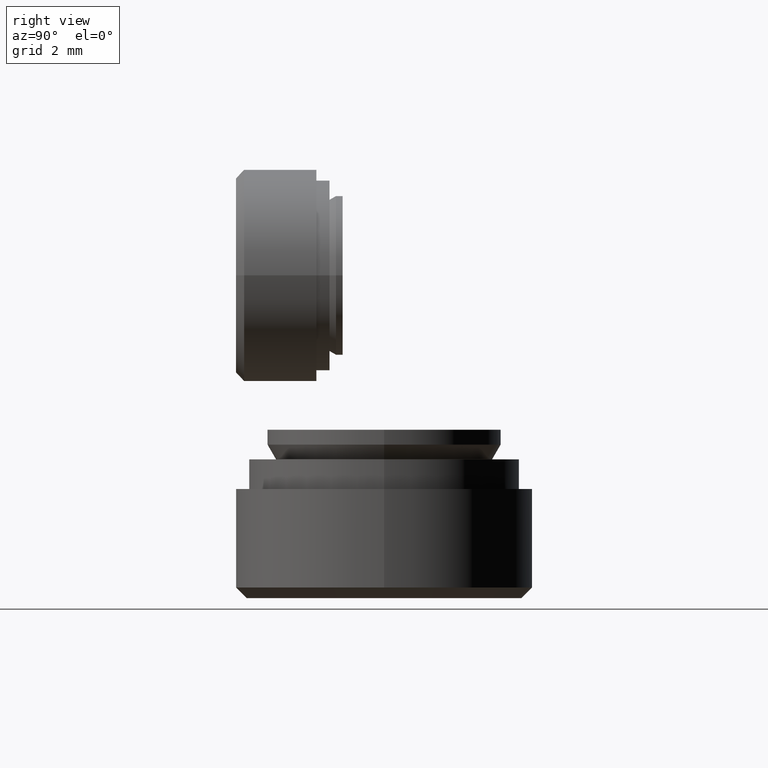
[diagram: clean part render]
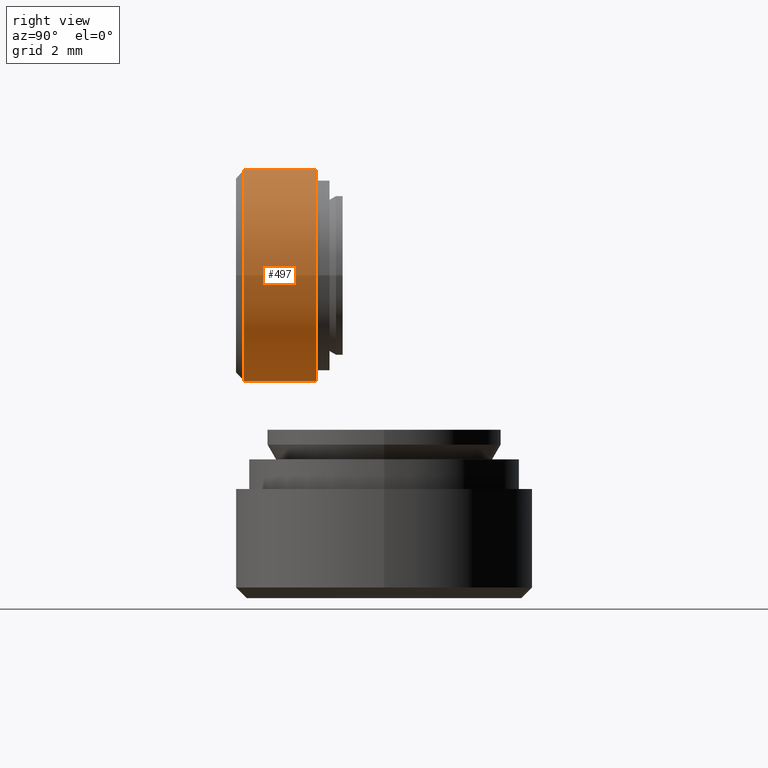
[diagram: same view with one face highlighted and labeled with its STEP entity id]
A machine part, right view. The second image highlights one B-rep face of the part: STEP entity #497.
In plain terms, the highlighted cylindrical surface (bore or boss wall) has radius 3.95 mm, axis along (0, -1, -0).
Its self-contained STEP definition (entity closure, byte-faithful):
#68=CYLINDRICAL_SURFACE('',#580,3.95);
#104=FACE_BOUND('',#222,.T.);
#146=FACE_OUTER_BOUND('',#221,.T.);
#221=EDGE_LOOP('',(#431));
#222=EDGE_LOOP('',(#432));
#271=CIRCLE('',#576,3.95);
#274=CIRCLE('',#581,3.95);
#313=VERTEX_POINT('',#881);
#316=VERTEX_POINT('',#889);
#355=EDGE_CURVE('',#313,#313,#271,.T.);
#358=EDGE_CURVE('',#316,#316,#274,.T.);
#431=ORIENTED_EDGE('',*,*,#358,.T.);
#432=ORIENTED_EDGE('',*,*,#355,.F.);
#497=ADVANCED_FACE('',(#146,#104),#68,.T.);
#576=AXIS2_PLACEMENT_3D('',#882,#734,#735);
#580=AXIS2_PLACEMENT_3D('',#888,#742,#743);
#581=AXIS2_PLACEMENT_3D('',#890,#744,#745);
#734=DIRECTION('center_axis',(0.,0.,-1.));
#735=DIRECTION('ref_axis',(1.,0.,0.));
#742=DIRECTION('center_axis',(0.,0.,-1.));
#743=DIRECTION('ref_axis',(-1.,0.,0.));
#744=DIRECTION('center_axis',(0.,0.,-1.));
#745=DIRECTION('ref_axis',(-1.,0.,0.));
#881=CARTESIAN_POINT('',(3.95,-4.83735485663205E-16,0.3));
#882=CARTESIAN_POINT('Origin',(0.,0.,0.3));
#888=CARTESIAN_POINT('Origin',(0.,0.,1.5));
#889=CARTESIAN_POINT('',(3.95,-4.83735485663205E-16,3.));
#890=CARTESIAN_POINT('Origin',(0.,0.,3.));